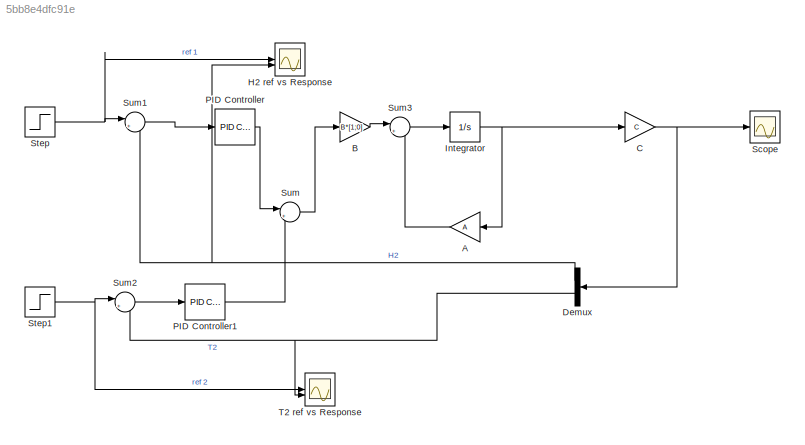
MODEL slx_5bb8e4dfc91e
KIND model
CONFIG AbsTol = auto
CONFIG EnableMultiTasking = off
CONFIG FixedStep = auto
CONFIG MaxStep = auto
CONFIG MinStep = auto
CONFIG RelTol = 1e-3
CONFIG SampleTimeConstraint = Unconstrained
CONFIG SolverName = VariableStepAuto
CONFIG StartTime = 0.0
CONFIG StopTime = 1000
BLOCK [Gain] A
  Gain = A
  Multiplication = Matrix(K*u)
BLOCK [Gain] B
  Gain = B*[1;0]
  Multiplication = Matrix(K*u)
BLOCK [Gain] C
  Gain = C
  Multiplication = Matrix(K*u)
BLOCK [Demux] Demux
  Outputs = 2
BLOCK [Scope] H2 ref vs Response
  Floating = off
  NumInputPorts = 2
  ScopeSpecificationString = Simulink.scopes.TimeScopeBlockCfg('CurrentConfiguration', extmgr.ConfigurationSet(extmgr.Configuration('Core','General UI',true),extmgr.Configuration('Core','Source UI',true),extmgr.Configuration('Sources','WiredSimulink',true,'DataLoggingVariableName','ScopeData1'),extmgr.Configuration('Visuals','Time Domain',true,'SerializedDisplays',{struct('MinYLimReal','-16.36902','MaxYLimReal','147.32118','Y...<+1505ch>
BLOCK [Integrator] Integrator
BLOCK [Reference] PID Controller  REF=slpidlib/PID Controller
  LibrarySourceBlock = simulink/Continuous/PID Controller
  SourceBlock = slpidlib/PID Controller
  SourceType = PID 1dof
BLOCK [Reference] PID Controller1  REF=slpidlib/PID Controller
  LibrarySourceBlock = simulink/Continuous/PID Controller
  SourceBlock = slpidlib/PID Controller
  SourceType = PID 1dof
BLOCK [Scope] Scope
  Floating = off
  NumInputPorts = 1
  ScopeSpecificationString = Simulink.scopes.TimeScopeBlockCfg('CurrentConfiguration', extmgr.ConfigurationSet(extmgr.Configuration('Core','General UI',true),extmgr.Configuration('Core','Source UI',true),extmgr.Configuration('Sources','WiredSimulink',true),extmgr.Configuration('Visuals','Time Domain',true,'SerializedDisplays',{struct('MinYLimReal','-16.36902','MaxYLimReal','147.32118','YLabelReal','','MinYLimMag','0.00000','M...<+1470ch>
BLOCK [Step] Step
  After = 1.6
  Before = 1.519
  SampleTime = 0
  Time = 100
BLOCK [Step] Step1
  After = 48
  Before = 45
  SampleTime = 0
  Time = 500
BLOCK [Sum] Sum
  Inputs = |++
BLOCK [Sum] Sum1
  Inputs = |+-
BLOCK [Sum] Sum2
  Inputs = |+-
BLOCK [Sum] Sum3
  Inputs = |++
BLOCK [Scope] T2 ref vs Response
  Floating = off
  NumInputPorts = 2
  ScopeSpecificationString = Simulink.scopes.TimeScopeBlockCfg('CurrentConfiguration', extmgr.ConfigurationSet(extmgr.Configuration('Core','General UI',true),extmgr.Configuration('Core','Source UI',true),extmgr.Configuration('Sources','WiredSimulink',true,'DataLoggingVariableName','ScopeData2'),extmgr.Configuration('Visuals','Time Domain',true,'SerializedDisplays',{struct('MinYLimReal','-6.00000','MaxYLimReal','54.00000','YLa...<+1525ch>
LINE A:1 -> Sum3:2
LINE B:1 -> Sum3:1
NET C:1 -> Demux:1, Scope:1
NET Demux:1 -> H2 ref vs Response:2, Sum1:2
NET Demux:2 -> Sum2:2, T2 ref vs Response:2
NET Integrator:1 -> A:1, C:1
LINE PID Controller1:1 -> Sum:2
LINE PID Controller:1 -> Sum:1
NET Step1:1 -> Sum2:1, T2 ref vs Response:1
NET Step:1 -> H2 ref vs Response:1, Sum1:1
LINE Sum1:1 -> PID Controller:1
LINE Sum2:1 -> PID Controller1:1
LINE Sum3:1 -> Integrator:1
LINE Sum:1 -> B:1
note: NET lines group one-source signal fan-out (src -> all destinations, sorted); 1:1 wires keep LINE
